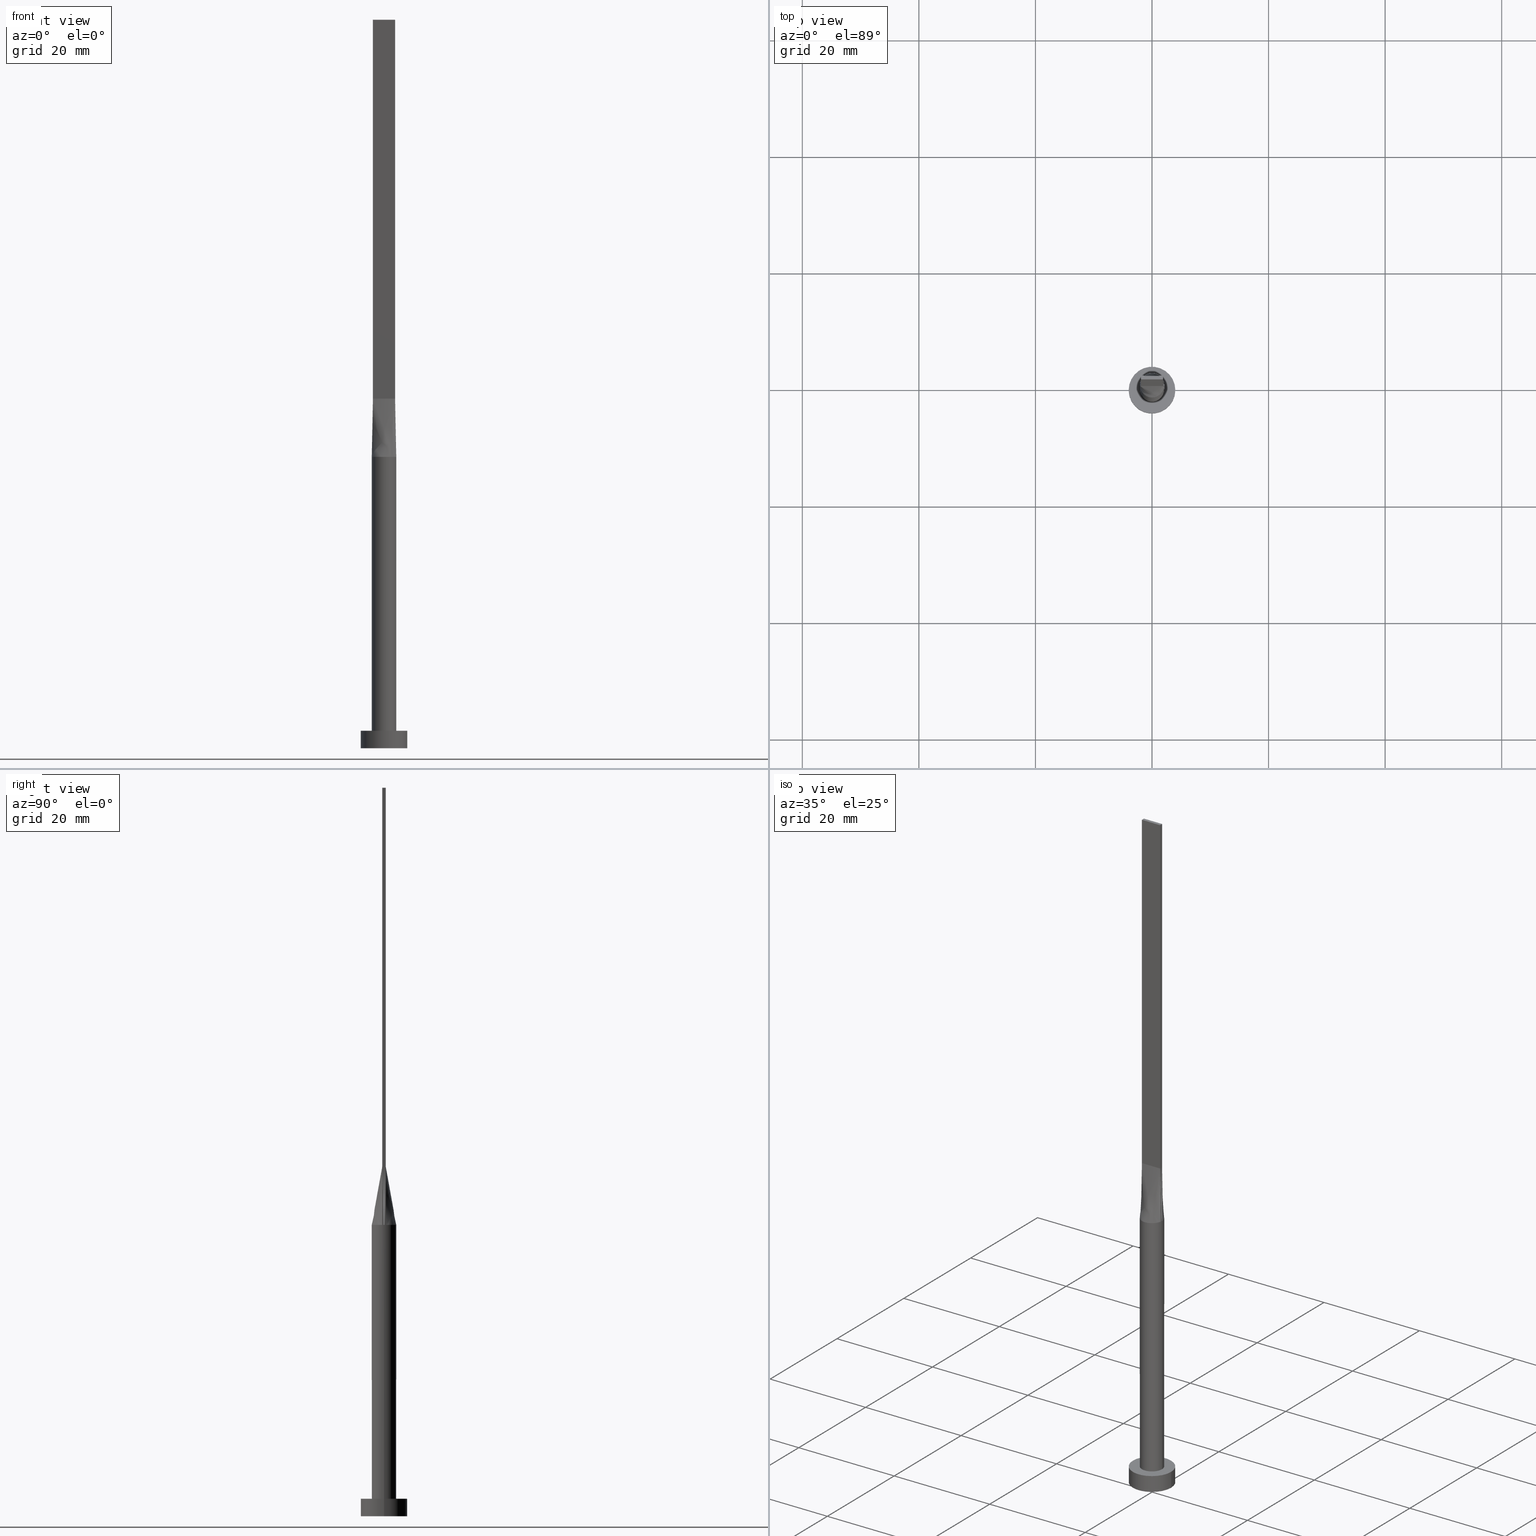
[diagram: canonical four-view strip — front | top / right | iso, engineering-drawing reading convention]
A machine part, canonical four-view strip (front | top / right | iso — engineering-drawing reading convention). The complete STEP part file that produces these views, byte-faithful:
ISO-10303-21;
HEADER;
FILE_DESCRIPTION (( 'STEP AP203' ),
    '1' );
FILE_NAME ('81cd.STEP',
    '2026-02-12T09:05:00',
    ( '' ),
    ( '' ),
    'SwSTEP 2.0',
    'SolidWorks 2019',
    '' );
FILE_SCHEMA (( 'CONFIG_CONTROL_DESIGN' ));
ENDSEC;

DATA;
#1 = CARTESIAN_POINT ( 'NONE',  ( 0.7916666666666664076, 0.3000000000000001554, 60.00000000000000000 ) ) ;
#2 = DIRECTION ( 'NONE',  ( 7.132909029509899409E-17, 1.000000000000000000, -0.000000000000000000 ) ) ;
#3 = FACE_OUTER_BOUND ( 'NONE', #59, .T. ) ;
#4 = CARTESIAN_POINT ( 'NONE',  ( 0.7916666666666672958, -0.2999999999999996003, 60.00000000000000000 ) ) ;
#5 = EDGE_CURVE ( 'NONE', #105, #156, #282, .T. ) ;
#6 = ORIENTED_EDGE ( 'NONE', *, *, #530, .F. ) ;
#7 = VECTOR ( 'NONE', #484, 1000.000000000000000 ) ;
#8 = ORIENTED_EDGE ( 'NONE', *, *, #332, .F. ) ;
#9 = CARTESIAN_POINT ( 'NONE',  ( -1.819451111325472548, -1.069832718648841663, 50.00000000000000711 ) ) ;
#10 = CARTESIAN_POINT ( 'NONE',  ( 1.819451111325471215, 1.069832718648841885, 49.99999999999999289 ) ) ;
#11 = DIRECTION ( 'NONE',  ( 0.000000000000000000, 0.000000000000000000, 1.000000000000000000 ) ) ;
#12 = ORIENTED_EDGE ( 'NONE', *, *, #425, .T. ) ;
#13 = EDGE_CURVE ( 'NONE', #186, #326, #440, .T. ) ;
#14 = ORIENTED_EDGE ( 'NONE', *, *, #386, .T. ) ;
#15 = CC_DESIGN_APPROVAL ( #241, ( #177 ) ) ;
#16 = APPROVAL_DATE_TIME ( #556, #302 ) ;
#17 = AXIS2_PLACEMENT_3D ( 'NONE', #230, #269, #309 ) ;
#18 = CARTESIAN_POINT ( 'NONE',  ( -0.5970064165420507774, 2.033566071616263127, 50.00000000000000000 ) ) ;
#19 = AXIS2_PLACEMENT_3D ( 'NONE', #340, #430, #68 ) ;
#20 = ORIENTED_EDGE ( 'NONE', *, *, #386, .F. ) ;
#21 = VERTEX_POINT ( 'NONE', #143 ) ;
#22 = DIRECTION ( 'NONE',  ( 3.614007241618350250E-16, 1.000000000000000000, 0.000000000000000000 ) ) ;
#23 = ORIENTED_EDGE ( 'NONE', *, *, #353, .T. ) ;
#24 = ADVANCED_FACE ( 'NONE', ( #508 ), #95, .F. ) ;
#25 = FACE_OUTER_BOUND ( 'NONE', #93, .T. ) ;
#26 = ORIENTED_EDGE ( 'NONE', *, *, #99, .T. ) ;
#27 = ORIENTED_EDGE ( 'NONE', *, *, #417, .T. ) ;
#28 = CARTESIAN_POINT ( 'NONE',  ( 0.2990728642939458615, 2.100000000000000089, 50.00000000000000711 ) ) ;
#29 = DIRECTION ( 'NONE',  ( -0.000000000000000000, -0.000000000000000000, -1.000000000000000000 ) ) ;
#30 = CARTESIAN_POINT ( 'NONE',  ( 0.000000000000000000, 0.000000000000000000, 125.0000000000000000 ) ) ;
#31 = CARTESIAN_POINT ( 'NONE',  ( -2.047342767731585411, -0.4982646475365654637, 50.00000000000000711 ) ) ;
#32 = DATE_AND_TIME ( #397, #163 ) ;
#33 = CARTESIAN_POINT ( 'NONE',  ( -1.899999999999999911, -0.2999999999999994893, 60.00000000000000711 ) ) ;
#34 = ORIENTED_EDGE ( 'NONE', *, *, #190, .F. ) ;
#35 = FACE_BOUND ( 'NONE', #327, .T. ) ;
#36 = EDGE_CURVE ( 'NONE', #278, #501, #187, .T. ) ;
#37 = LINE ( 'NONE', #580, #402 ) ;
#38 = CC_DESIGN_SECURITY_CLASSIFICATION ( #183, ( #177 ) ) ;
#39 = FACE_OUTER_BOUND ( 'NONE', #534, .T. ) ;
#40 = AXIS2_PLACEMENT_3D ( 'NONE', #350, #494, #173 ) ;
#41 = DATE_AND_TIME ( #452, #361 ) ;
#42 = FACE_OUTER_BOUND ( 'NONE', #272, .T. ) ;
#43 = CARTESIAN_POINT ( 'NONE',  ( 1.692271541701912296, 1.268928319070362187, 50.00000000000000711 ) ) ;
#44 = EDGE_CURVE ( 'NONE', #278, #546, #141, .T. ) ;
#45 = CARTESIAN_POINT ( 'NONE',  ( -0.2990728642939464721, -2.100000000000000977, 50.00000000000000711 ) ) ;
#46 = EDGE_LOOP ( 'NONE', ( #363, #20, #61, #314 ) ) ;
#47 = B_SPLINE_CURVE_WITH_KNOTS ( 'NONE', 3,
 ( #254, #540, #351, #573, #578, #167, #125, #575, #295, #218, #298, #72, #75, #445, #401, #355, #221, #404 ),
 .UNSPECIFIED., .F., .F.,
 ( 4, 2, 2, 2, 2, 2, 2, 2, 4 ),
 ( 0.000000000000000000, 0.1249999999999999722, 0.2500000000000000000, 0.3750000000000000000, 0.5000000000000000000, 0.6250000000000000000, 0.7500000000000000000, 0.8750000000000000000, 1.000000000000000000 ),
 .UNSPECIFIED. ) ;
#48 = CARTESIAN_POINT ( 'NONE',  ( -0.7916666666666655194, -0.2999999999999995448, 60.00000000000000000 ) ) ;
#49 = CARTESIAN_POINT ( 'NONE',  ( 0.000000000000000000, 0.000000000000000000, 0.000000000000000000 ) ) ;
#50 = VERTEX_POINT ( 'NONE', #505 ) ;
#51 = CARTESIAN_POINT ( 'NONE',  ( 1.899999999999999689, 0.3000000000000002109, 125.0000000000000000 ) ) ;
#52 = VECTOR ( 'NONE', #492, 1000.000000000000000 ) ;
#53 = CARTESIAN_POINT ( 'NONE',  ( 1.996565546919327527, 0.6845950695482651005, 50.00000000000001421 ) ) ;
#54 = APPROVAL_STATUS ( 'not_yet_approved' ) ;
#55 = ORIENTED_EDGE ( 'NONE', *, *, #368, .T. ) ;
#56 = ADVANCED_FACE ( 'NONE', ( #276 ), #543, .T. ) ;
#57 = CARTESIAN_POINT ( 'NONE',  ( 1.108333333333332948, 0.3000000000000001554, 59.99999999999999289 ) ) ;
#58 = CARTESIAN_POINT ( 'NONE',  ( 2.074302227191044956, 0.3275214042933228820, 50.00000000000000000 ) ) ;
#59 = EDGE_LOOP ( 'NONE', ( #310, #377, #103, #396, #574 ) ) ;
#60 = AXIS2_PLACEMENT_3D ( 'NONE', #463, #2, #515 ) ;
#61 = ORIENTED_EDGE ( 'NONE', *, *, #290, .F. ) ;
#62 = CC_DESIGN_PERSON_AND_ORGANIZATION_ASSIGNMENT ( #299, #357, ( #183 ) ) ;
#63 = DIRECTION ( 'NONE',  ( 0.000000000000000000, 0.000000000000000000, 1.000000000000000000 ) ) ;
#64 = CARTESIAN_POINT ( 'NONE',  ( -2.074302227191044956, -0.3275214042933223824, 50.00000000000000000 ) ) ;
#65 = VECTOR ( 'NONE', #324, 1000.000000000000000 ) ;
#66 = DIRECTION ( 'NONE',  ( -1.000000000000000000, 0.000000000000000000, 0.000000000000000000 ) ) ;
#67 = CARTESIAN_POINT ( 'NONE',  ( 0.1583333333333333259, 0.3000000000000001554, 60.00000000000000000 ) ) ;
#68 = DIRECTION ( 'NONE',  ( -1.000000000000000000, 0.000000000000000000, 0.000000000000000000 ) ) ;
#69 = CARTESIAN_POINT ( 'NONE',  ( 2.074302227191044956, -0.3275214042933231595, 50.00000000000000000 ) ) ;
#70 = CARTESIAN_POINT ( 'NONE',  ( -1.899999999999999689, 0.3000000000000002109, 60.00000000000000711 ) ) ;
#71 = CARTESIAN_POINT ( 'NONE',  ( -1.583333333333333037, -0.2999999999999994893, 60.00000000000000711 ) ) ;
#72 = CARTESIAN_POINT ( 'NONE',  ( -1.119115561862284558, 1.799829988698611327, 49.99999999999999289 ) ) ;
#73 = AXIS2_PLACEMENT_3D ( 'NONE', #348, #258, #120 ) ;
#74 = LINE ( 'NONE', #491, #373 ) ;
#75 = CARTESIAN_POINT ( 'NONE',  ( -1.342614810400549308, 1.634425746458370021, 50.00000000000002132 ) ) ;
#76 = EDGE_CURVE ( 'NONE', #156, #21, #507, .T. ) ;
#77 = LINE ( 'NONE', #260, #223 ) ;
#78 = CARTESIAN_POINT ( 'NONE',  ( 1.987151113595522212, -0.3137607021466614632, 55.00000000000000711 ) ) ;
#79 = DIRECTION ( 'NONE',  ( -0.01742750958084840485, -0.002751712039081279787, 0.9998443428807622935 ) ) ;
#80 = ORGANIZATION ( 'NEUR�EN�', 'NEUR�EN�', '' ) ;
#81 = CARTESIAN_POINT ( 'NONE',  ( 1.119115561862284558, 1.799829988698611105, 49.99999999999999289 ) ) ;
#82 = CARTESIAN_POINT ( 'NONE',  ( -0.1583333333333317716, -0.2999999999999996003, 60.00000000000000000 ) ) ;
#83 = ORIENTED_EDGE ( 'NONE', *, *, #312, .F. ) ;
#84 = CARTESIAN_POINT ( 'NONE',  ( 4.000000000000000000, 4.898587196589412829E-16, 3.000000000000000000 ) ) ;
#85 = CARTESIAN_POINT ( 'NONE',  ( -2.100000000000000089, 0.000000000000000000, 50.00000000000000000 ) ) ;
#86 = ORIENTED_EDGE ( 'NONE', *, *, #13, .F. ) ;
#87 = CARTESIAN_POINT ( 'NONE',  ( 1.119115561862284114, -1.799829988698610883, 49.99999999999997868 ) ) ;
#88 = ORIENTED_EDGE ( 'NONE', *, *, #228, .F. ) ;
#89 = DIRECTION ( 'NONE',  ( 1.000000000000000000, -3.614007241618350250E-16, 0.000000000000000000 ) ) ;
#90 = APPLICATION_PROTOCOL_DEFINITION ( 'international standard', 'config_control_design', 1994, #198 ) ;
#91 = AXIS2_PLACEMENT_3D ( 'NONE', #394, #532, #437 ) ;
#92 = VECTOR ( 'NONE', #379, 1000.000000000000000 ) ;
#93 = EDGE_LOOP ( 'NONE', ( #462, #158, #429, #367 ) ) ;
#94 =( LENGTH_UNIT ( ) NAMED_UNIT ( * ) SI_UNIT ( .MILLI., .METRE. ) );
#95 = PLANE ( 'NONE',  #17 ) ;
#96 = ORIENTED_EDGE ( 'NONE', *, *, #178, .T. ) ;
#97 = SHAPE_DEFINITION_REPRESENTATION ( #189, #516 ) ;
#98 = ORIENTED_EDGE ( 'NONE', *, *, #519, .F. ) ;
#99 = EDGE_CURVE ( 'NONE', #229, #546, #161, .T. ) ;
#100 = AXIS2_PLACEMENT_3D ( 'NONE', #477, #206, #384 ) ;
#101 = FACE_OUTER_BOUND ( 'NONE', #408, .T. ) ;
#102 = DIRECTION ( 'NONE',  ( 1.000000000000000000, 0.000000000000000000, 0.000000000000000000 ) ) ;
#103 = ORIENTED_EDGE ( 'NONE', *, *, #368, .F. ) ;
#104 = LINE ( 'NONE', #84, #370 ) ;
#105 = VERTEX_POINT ( 'NONE', #70 ) ;
#106 = CARTESIAN_POINT ( 'NONE',  ( 2.099842767731585624, -0.1098417832277428230, 50.00000000000000000 ) ) ;
#107 = DIRECTION ( 'NONE',  ( 1.000000000000000000, 0.000000000000000000, 0.000000000000000000 ) ) ;
#108 = CYLINDRICAL_SURFACE ( 'NONE', #504, 4.000000000000000000 ) ;
#109 = ADVANCED_FACE ( 'NONE', ( #249 ), #365, .T. ) ;
#110 = CARTESIAN_POINT ( 'NONE',  ( -0.6333333333333331927, 0.3000000000000001554, 60.00000000000000000 ) ) ;
#111 = CARTESIAN_POINT ( 'NONE',  ( 1.899999999999999689, -0.09999999999999995004, 60.00000000000000000 ) ) ;
#112 = CIRCLE ( 'NONE', #459, 4.000000000000000000 ) ;
#113 = APPROVAL_PERSON_ORGANIZATION ( #148, #281, #192 ) ;
#114 = CARTESIAN_POINT ( 'NONE',  ( 0.000000000000000000, 0.000000000000000000, 50.00000000000000000 ) ) ;
#115 = CARTESIAN_POINT ( 'NONE',  ( -2.074302227191044956, 0.3275214042933224934, 50.00000000000000000 ) ) ;
#116 = EDGE_LOOP ( 'NONE', ( #372, #237, #521, #6 ) ) ;
#117 = CARTESIAN_POINT ( 'NONE',  ( -0.2990728642939458615, 2.100000000000000089, 49.99999999999999289 ) ) ;
#118 = PERSON_AND_ORGANIZATION ( #382, #80 ) ;
#119 = CARTESIAN_POINT ( 'NONE',  ( 1.899999999999999467, 0.1000000000000000194, 60.00000000000000000 ) ) ;
#120 = DIRECTION ( 'NONE',  ( -1.084202172485504434E-15, -1.000000000000000000, 0.000000000000000000 ) ) ;
#121 = PRODUCT ( '81cd', '81cd', '', ( #466 ) ) ;
#122 = CARTESIAN_POINT ( 'NONE',  ( -2.091329254218072364, 0.2196835664554852019, 50.00000000000000000 ) ) ;
#123 = ORIENTED_EDGE ( 'NONE', *, *, #378, .F. ) ;
#124 = EDGE_CURVE ( 'NONE', #292, #21, #219, .T. ) ;
#125 = CARTESIAN_POINT ( 'NONE',  ( 1.119115561862284558, 1.799829988698611105, 49.99999999999999289 ) ) ;
#126 = VECTOR ( 'NONE', #558, 1000.000000000000000 ) ;
#127 = PERSON_AND_ORGANIZATION_ROLE ( 'design_supplier' ) ;
#128 = CARTESIAN_POINT ( 'NONE',  ( 1.899999999999999689, 0.3000000000000002109, 60.00000000000000711 ) ) ;
#129 = LINE ( 'NONE', #537, #52 ) ;
#130 = SECURITY_CLASSIFICATION_LEVEL ( 'unclassified' ) ;
#131 = CARTESIAN_POINT ( 'NONE',  ( 2.047342767731584967, 0.4982646475365660188, 50.00000000000002132 ) ) ;
#132 = DIRECTION ( 'NONE',  ( -0.000000000000000000, -0.000000000000000000, -1.000000000000000000 ) ) ;
#133 = ADVANCED_FACE ( 'NONE', ( #566 ), #490, .T. ) ;
#134 = CARTESIAN_POINT ( 'NONE',  ( -0.3166666666666652086, -0.2999999999999996003, 60.00000000000000000 ) ) ;
#135 = DIRECTION ( 'NONE',  ( 0.000000000000000000, 0.000000000000000000, 1.000000000000000000 ) ) ;
#136 = VERTEX_POINT ( 'NONE', #291 ) ;
#137 = VECTOR ( 'NONE', #435, 1000.000000000000114 ) ;
#138 = LINE ( 'NONE', #311, #211 ) ;
#139 = CARTESIAN_POINT ( 'NONE',  ( -1.899999999999999467, 0.2000000000000005107, 60.00000000000000000 ) ) ;
#140 = CARTESIAN_POINT ( 'NONE',  ( -1.342614810400548864, -1.634425746458369355, 50.00000000000001421 ) ) ;
#141 = LINE ( 'NONE', #85, #513 ) ;
#142 = ORIENTED_EDGE ( 'NONE', *, *, #318, .T. ) ;
#143 = CARTESIAN_POINT ( 'NONE',  ( 1.899999999999999023, -0.2999999999999997669, 60.00000000000000711 ) ) ;
#144 = CC_DESIGN_PERSON_AND_ORGANIZATION_ASSIGNMENT ( #538, #576, ( #177 ) ) ;
#145 = FACE_OUTER_BOUND ( 'NONE', #46, .T. ) ;
#146 = LOCAL_TIME ( 10, 5, 0.000000000000000000, #506 ) ;
#147 = CARTESIAN_POINT ( 'NONE',  ( -1.266666666666666385, 0.3000000000000002109, 60.00000000000000000 ) ) ;
#148 = PERSON_AND_ORGANIZATION ( #382, #80 ) ;
#149 = ORIENTED_EDGE ( 'NONE', *, *, #5, .T. ) ;
#150 = ORIENTED_EDGE ( 'NONE', *, *, #99, .F. ) ;
#151 = EDGE_CURVE ( 'NONE', #330, #105, #485, .T. ) ;
#152 = EDGE_LOOP ( 'NONE', ( #559, #499, #320, #416 ) ) ;
#153 = AXIS2_PLACEMENT_3D ( 'NONE', #328, #63, #102 ) ;
#154 = CARTESIAN_POINT ( 'NONE',  ( -1.899999999999999911, -0.2999999999999994893, 125.0000000000000000 ) ) ;
#155 = LINE ( 'NONE', #334, #495 ) ;
#156 = VERTEX_POINT ( 'NONE', #33 ) ;
#157 = EDGE_CURVE ( 'NONE', #292, #169, #478, .T. ) ;
#158 = ORIENTED_EDGE ( 'NONE', *, *, #265, .T. ) ;
#159 = CARTESIAN_POINT ( 'NONE',  ( 2.074471112824316510, 0.3275477247839024275, 50.00000000000000000 ) ) ;
#160 = DIRECTION ( 'NONE',  ( -0.000000000000000000, -0.000000000000000000, -1.000000000000000000 ) ) ;
#161 = CIRCLE ( 'NONE', #331, 2.100000000000000089 ) ;
#162 = LINE ( 'NONE', #200, #503 ) ;
#163 = LOCAL_TIME ( 10, 5, 0.000000000000000000, #166 ) ;
#164 = DIRECTION ( 'NONE',  ( -0.000000000000000000, -0.000000000000000000, -1.000000000000000000 ) ) ;
#165 = CARTESIAN_POINT ( 'NONE',  ( -1.692271541701912296, 1.268928319070362631, 50.00000000000001421 ) ) ;
#166 = COORDINATED_UNIVERSAL_TIME_OFFSET ( 1, 0, .AHEAD. ) ;
#167 = CARTESIAN_POINT ( 'NONE',  ( 1.342614810400549086, 1.634425746458369799, 50.00000000000001421 ) ) ;
#168 = CARTESIAN_POINT ( 'NONE',  ( -2.091329254218072364, -0.2196835664554846468, 50.00000000000000000 ) ) ;
#169 = VERTEX_POINT ( 'NONE', #443 ) ;
#170 = CC_DESIGN_DATE_AND_TIME_ASSIGNMENT ( #32, #346, ( #553 ) ) ;
#171 = APPROVAL_ROLE ( '' ) ;
#172 = PERSON_AND_ORGANIZATION ( #382, #80 ) ;
#173 = DIRECTION ( 'NONE',  ( 1.000000000000000000, 0.000000000000000000, 0.000000000000000000 ) ) ;
#174 = DATE_TIME_ROLE ( 'classification_date' ) ;
#175 = CARTESIAN_POINT ( 'NONE',  ( 4.000000000000000000, 4.898587196589412829E-16, 0.000000000000000000 ) ) ;
#176 = AXIS2_PLACEMENT_3D ( 'NONE', #319, #11, #191 ) ;
#177 = PRODUCT_DEFINITION_FORMATION_WITH_SPECIFIED_SOURCE ( 'LIBOVOLN�', '', #121, .NOT_KNOWN. ) ;
#178 = EDGE_CURVE ( 'NONE', #514, #105, #488, .T. ) ;
#179 = FACE_OUTER_BOUND ( 'NONE', #231, .T. ) ;
#180 = DIRECTION ( 'NONE',  ( 1.084202172485504434E-15, 1.000000000000000000, 0.000000000000000000 ) ) ;
#181 = CARTESIAN_POINT ( 'NONE',  ( -1.266666666666665941, -0.2999999999999994893, 60.00000000000000000 ) ) ;
#182 = CARTESIAN_POINT ( 'NONE',  ( -1.899999999999999689, 0.3000000000000002109, 125.0000000000000000 ) ) ;
#183 = SECURITY_CLASSIFICATION ( '', '', #130 ) ;
#184 = CARTESIAN_POINT ( 'NONE',  ( 1.692271541701912962, -1.268928319070363520, 50.00000000000004263 ) ) ;
#185 = DIRECTION ( 'NONE',  ( 1.000000000000000000, 0.000000000000000000, 0.000000000000000000 ) ) ;
#186 = VERTEX_POINT ( 'NONE', #175 ) ;
#187 = CIRCLE ( 'NONE', #176, 2.100000000000000089 ) ;
#188 = CARTESIAN_POINT ( 'NONE',  ( 0.6333333333333341919, -0.2999999999999996003, 60.00000000000000000 ) ) ;
#189 = PRODUCT_DEFINITION_SHAPE ( 'NONE', 'NONE',  #553 ) ;
#190 = EDGE_CURVE ( 'NONE', #169, #549, #431, .T. ) ;
#191 = DIRECTION ( 'NONE',  ( 1.000000000000000000, 0.000000000000000000, 0.000000000000000000 ) ) ;
#192 = APPROVAL_ROLE ( '' ) ;
#193 = APPLICATION_PROTOCOL_DEFINITION ( 'international standard', 'config_control_design', 1994, #518 ) ;
#194 = ORIENTED_EDGE ( 'NONE', *, *, #312, .T. ) ;
#195 = VECTOR ( 'NONE', #164, 1000.000000000000000 ) ;
#196 = AXIS2_PLACEMENT_3D ( 'NONE', #30, #448, #455 ) ;
#197 = CARTESIAN_POINT ( 'NONE',  ( -1.583333333333333037, 0.3000000000000002109, 60.00000000000000000 ) ) ;
#198 = APPLICATION_CONTEXT ( 'configuration controlled 3d designs of mechanical parts and assemblies' ) ;
#199 = ADVANCED_FACE ( 'NONE', ( #35, #42 ), #251, .T. ) ;
#200 = CARTESIAN_POINT ( 'NONE',  ( -1.987151113595522656, -0.3137607021466609636, 55.00000000000000711 ) ) ;
#201 = ORIENTED_EDGE ( 'NONE', *, *, #44, .F. ) ;
#202 = LINE ( 'NONE', #236, #195 ) ;
#203 = ORIENTED_EDGE ( 'NONE', *, *, #157, .F. ) ;
#204 = CARTESIAN_POINT ( 'NONE',  ( 1.899999999999999689, 0.3000000000000002109, 125.0000000000000000 ) ) ;
#205 = PLANE ( 'NONE',  #196 ) ;
#206 = DIRECTION ( 'NONE',  ( 0.000000000000000000, 0.000000000000000000, 1.000000000000000000 ) ) ;
#207 = CARTESIAN_POINT ( 'NONE',  ( 1.741666666666665586, -0.2999999999999997113, 60.00000000000000000 ) ) ;
#208 = CARTESIAN_POINT ( 'NONE',  ( -1.108333333333333171, 0.3000000000000002109, 60.00000000000000000 ) ) ;
#209 = APPROVAL_STATUS ( 'not_yet_approved' ) ;
#210 = CARTESIAN_POINT ( 'NONE',  ( 2.074302227191044956, 0.3275214042933226599, 50.00000000000000000 ) ) ;
#211 = VECTOR ( 'NONE', #364, 1000.000000000000000 ) ;
#212 = CARTESIAN_POINT ( 'NONE',  ( 0.000000000000000000, 0.000000000000000000, 50.00000000000000000 ) ) ;
#213 = ADVANCED_FACE ( 'NONE', ( #179 ), #216, .F. ) ;
#214 = CARTESIAN_POINT ( 'NONE',  ( 0.000000000000000000, 0.000000000000000000, 50.00000000000000000 ) ) ;
#215 = ORIENTED_EDGE ( 'NONE', *, *, #190, .T. ) ;
#216 = PLANE ( 'NONE',  #73 ) ;
#217 = DATE_AND_TIME ( #356, #329 ) ;
#218 = CARTESIAN_POINT ( 'NONE',  ( -0.2990728642939458615, 2.100000000000000089, 49.99999999999999289 ) ) ;
#219 = LINE ( 'NONE', #78, #137 ) ;
#220 = EDGE_CURVE ( 'NONE', #549, #330, #47, .T. ) ;
#221 = CARTESIAN_POINT ( 'NONE',  ( -2.047342767731585855, 0.4982646475365663519, 50.00000000000000711 ) ) ;
#222 = VECTOR ( 'NONE', #438, 1000.000000000000114 ) ;
#223 = VECTOR ( 'NONE', #79, 1000.000000000000114 ) ;
#224 = CARTESIAN_POINT ( 'NONE',  ( 2.074302227191044956, -0.3275214042933231595, 50.00000000000000000 ) ) ;
#225 = LINE ( 'NONE', #409, #92 ) ;
#226 = CARTESIAN_POINT ( 'NONE',  ( 0.2990728642939452508, -2.100000000000000533, 50.00000000000001421 ) ) ;
#227 = CARTESIAN_POINT ( 'NONE',  ( 0.5970064165420505553, -2.033566071616262683, 50.00000000000000711 ) ) ;
#228 = EDGE_CURVE ( 'NONE', #136, #326, #129, .T. ) ;
#229 = VERTEX_POINT ( 'NONE', #447 ) ;
#230 = CARTESIAN_POINT ( 'NONE',  ( 0.000000000000000000, 0.000000000000000000, 0.000000000000000000 ) ) ;
#231 = EDGE_LOOP ( 'NONE', ( #12, #563, #98, #14 ) ) ;
#232 = CARTESIAN_POINT ( 'NONE',  ( -2.099921383865792635, -5.254633567926592411E-16, 50.00000000000000000 ) ) ;
#233 = DIRECTION ( 'NONE',  ( 0.000000000000000000, 0.000000000000000000, 1.000000000000000000 ) ) ;
#234 = EDGE_CURVE ( 'NONE', #528, #105, #37, .T. ) ;
#235 = ORIENTED_EDGE ( 'NONE', *, *, #13, .T. ) ;
#236 = CARTESIAN_POINT ( 'NONE',  ( 1.899999999999999023, -0.2999999999999997669, 125.0000000000000000 ) ) ;
#237 = ORIENTED_EDGE ( 'NONE', *, *, #151, .T. ) ;
#238 = ORIENTED_EDGE ( 'NONE', *, *, #417, .F. ) ;
#239 = DIRECTION ( 'NONE',  ( 1.000000000000000000, 0.000000000000000000, 0.000000000000000000 ) ) ;
#240 = FACE_OUTER_BOUND ( 'NONE', #375, .T. ) ;
#241 = APPROVAL ( #209, 'NEUR�EN�' ) ;
#242 = AXIS2_PLACEMENT_3D ( 'NONE', #114, #288, #482 ) ;
#243 = VECTOR ( 'NONE', #29, 1000.000000000000000 ) ;
#244 = CARTESIAN_POINT ( 'NONE',  ( 1.899999999999999467, 0.2000000000000000666, 60.00000000000000000 ) ) ;
#245 = CYLINDRICAL_SURFACE ( 'NONE', #19, 4.000000000000000000 ) ;
#246 = EDGE_LOOP ( 'NONE', ( #149, #542, #360, #96 ) ) ;
#247 = CARTESIAN_POINT ( 'NONE',  ( 0.000000000000000000, 0.000000000000000000, 3.000000000000000000 ) ) ;
#248 = ORIENTED_EDGE ( 'NONE', *, *, #332, .T. ) ;
#249 = FACE_OUTER_BOUND ( 'NONE', #433, .T. ) ;
#250 = ADVANCED_FACE ( 'NONE', ( #101 ), #471, .T. ) ;
#251 = PLANE ( 'NONE',  #91 ) ;
#252 = B_SPLINE_SURFACE_WITH_KNOTS ( 'NONE', 3, 1, ( 
 ( #300, #307 ),
 ( #122, #139 ),
 ( #303, #296 ),
 ( #444, #358 ),
 ( #168, #539 ),
 ( #577, #489 ) ),
 .UNSPECIFIED., .F., .F., .F.,
 ( 4, 2, 4 ),
 ( 2, 2 ),
 ( 0.000000000000000000, 0.5000000000000000000, 1.000000000000000000 ),
 ( 0.000000000000000000, 1.000000000000000000 ),
 .UNSPECIFIED. ) ;
#253 = FACE_OUTER_BOUND ( 'NONE', #152, .T. ) ;
#254 = CARTESIAN_POINT ( 'NONE',  ( 2.074471112824316510, 0.3275477247839024275, 50.00000000000000000 ) ) ;
#255 = CARTESIAN_POINT ( 'NONE',  ( -1.987151113595522212, 0.3137607021466613522, 55.00000000000000711 ) ) ;
#256 = CARTESIAN_POINT ( 'NONE',  ( -1.899999999999999911, -0.2999999999999994893, 125.0000000000000000 ) ) ;
#257 = B_SPLINE_SURFACE_WITH_KNOTS ( 'NONE', 3, 1, ( 
 ( #224, #406 ),
 ( #581, #572 ),
 ( #106, #111 ),
 ( #339, #119 ),
 ( #393, #244 ),
 ( #210, #385 ) ),
 .UNSPECIFIED., .F., .F., .F.,
 ( 4, 2, 4 ),
 ( 2, 2 ),
 ( 0.000000000000000000, 0.5000000000000000000, 1.000000000000000000 ),
 ( 0.000000000000000000, 1.000000000000000000 ),
 .UNSPECIFIED. ) ;
#258 = DIRECTION ( 'NONE',  ( -1.000000000000000000, 1.084202172485504434E-15, 0.000000000000000000 ) ) ;
#259 = ADVANCED_FACE ( 'NONE', ( #145 ), #426, .F. ) ;
#260 = CARTESIAN_POINT ( 'NONE',  ( 1.987151113595522212, 0.3137607021466614077, 55.00000000000000711 ) ) ;
#261 = APPROVAL_STATUS ( 'not_yet_approved' ) ;
#262 = DIRECTION ( 'NONE',  ( 0.000000000000000000, 0.000000000000000000, 1.000000000000000000 ) ) ;
#263 = COORDINATED_UNIVERSAL_TIME_OFFSET ( 1, 0, .AHEAD. ) ;
#264 = CARTESIAN_POINT ( 'NONE',  ( 1.899999999999999689, 0.3000000000000002109, 60.00000000000000711 ) ) ;
#265 = EDGE_CURVE ( 'NONE', #514, #525, #225, .T. ) ;
#266 = VERTEX_POINT ( 'NONE', #51 ) ;
#267 = CARTESIAN_POINT ( 'NONE',  ( 1.583333333333332815, 0.3000000000000002109, 60.00000000000000000 ) ) ;
#268 = CARTESIAN_POINT ( 'NONE',  ( 1.108333333333333393, -0.2999999999999996558, 60.00000000000000000 ) ) ;
#269 = DIRECTION ( 'NONE',  ( 0.000000000000000000, 0.000000000000000000, 1.000000000000000000 ) ) ;
#270 = PERSON_AND_ORGANIZATION ( #382, #80 ) ;
#271 = CARTESIAN_POINT ( 'NONE',  ( 1.741666666666666252, 0.3000000000000002109, 60.00000000000000000 ) ) ;
#272 = EDGE_LOOP ( 'NONE', ( #248, #23 ) ) ;
#273 =( NAMED_UNIT ( * ) PLANE_ANGLE_UNIT ( ) SI_UNIT ( $, .RADIAN. ) );
#274 = ADVANCED_FACE ( 'NONE', ( #322 ), #333, .F. ) ;
#275 = CARTESIAN_POINT ( 'NONE',  ( -1.899999999999999911, -0.2999999999999994893, 60.00000000000000711 ) ) ;
#276 = FACE_OUTER_BOUND ( 'NONE', #116, .T. ) ;
#277 = PERSON_AND_ORGANIZATION ( #382, #80 ) ;
#278 = VERTEX_POINT ( 'NONE', #232 ) ;
#279 = ORIENTED_EDGE ( 'NONE', *, *, #425, .F. ) ;
#280 = DESIGN_CONTEXT ( 'detailed design', #518, 'design' ) ;
#281 = APPROVAL ( #54, 'NEUR�EN�' ) ;
#282 = LINE ( 'NONE', #418, #65 ) ;
#283 = CARTESIAN_POINT ( 'NONE',  ( -1.819451111325472326, 1.069832718648841885, 50.00000000000000711 ) ) ;
#284 = CARTESIAN_POINT ( 'NONE',  ( -2.100000000000000089, 0.000000000000000000, 3.000000000000000000 ) ) ;
#285 = CARTESIAN_POINT ( 'NONE',  ( -1.342614810400549308, 1.634425746458370021, 50.00000000000002132 ) ) ;
#286 = AXIS2_PLACEMENT_3D ( 'NONE', #474, #561, #239 ) ;
#287 = PLANE ( 'NONE',  #579 ) ;
#288 = DIRECTION ( 'NONE',  ( -0.000000000000000000, -0.000000000000000000, -1.000000000000000000 ) ) ;
#289 = EDGE_LOOP ( 'NONE', ( #468, #86 ) ) ;
#290 = EDGE_CURVE ( 'NONE', #525, #50, #498, .T. ) ;
#291 = CARTESIAN_POINT ( 'NONE',  ( -4.000000000000000000, 0.000000000000000000, 3.000000000000000000 ) ) ;
#292 = VERTEX_POINT ( 'NONE', #316 ) ;
#293 = CARTESIAN_POINT ( 'NONE',  ( -1.996565546919327971, -0.6845950695482642123, 50.00000000000000000 ) ) ;
#294 = DIRECTION ( 'NONE',  ( 0.000000000000000000, 0.000000000000000000, 1.000000000000000000 ) ) ;
#295 = CARTESIAN_POINT ( 'NONE',  ( 0.2990728642939458615, 2.100000000000000089, 50.00000000000000711 ) ) ;
#296 = CARTESIAN_POINT ( 'NONE',  ( -1.899999999999999467, 0.1000000000000007550, 60.00000000000000000 ) ) ;
#297 = VECTOR ( 'NONE', #132, 1000.000000000000000 ) ;
#298 = CARTESIAN_POINT ( 'NONE',  ( -0.5970064165420507774, 2.033566071616263127, 50.00000000000000000 ) ) ;
#299 = PERSON_AND_ORGANIZATION ( #382, #80 ) ;
#300 = CARTESIAN_POINT ( 'NONE',  ( -2.074302227191044956, 0.3275214042933229375, 50.00000000000000000 ) ) ;
#301 = PERSON_AND_ORGANIZATION ( #382, #80 ) ;
#302 = APPROVAL ( #261, 'NEUR�EN�' ) ;
#303 = CARTESIAN_POINT ( 'NONE',  ( -2.099842767731585624, 0.1098417832277427397, 50.00000000000000000 ) ) ;
#304 = CARTESIAN_POINT ( 'NONE',  ( 1.342614810400549086, 1.634425746458369799, 50.00000000000001421 ) ) ;
#305 = DIRECTION ( 'NONE',  ( -1.000000000000000000, -0.000000000000000000, -0.000000000000000000 ) ) ;
#306 = CARTESIAN_POINT ( 'NONE',  ( -0.6333333333333320825, -0.2999999999999996003, 60.00000000000000000 ) ) ;
#307 = CARTESIAN_POINT ( 'NONE',  ( -1.899999999999999689, 0.3000000000000002109, 60.00000000000000711 ) ) ;
#308 = CLOSED_SHELL ( 'NONE', ( #133, #461, #469, #199, #24, #250, #109, #536, #493, #56, #560, #274, #259, #213, #487 ) ) ;
#309 = DIRECTION ( 'NONE',  ( 1.000000000000000000, 0.000000000000000000, -0.000000000000000000 ) ) ;
#310 = ORIENTED_EDGE ( 'NONE', *, *, #378, .T. ) ;
#311 = CARTESIAN_POINT ( 'NONE',  ( 2.100000000000000089, 2.571758278209441957E-16, 50.00000000000000000 ) ) ;
#312 = EDGE_CURVE ( 'NONE', #380, #186, #104, .T. ) ;
#313 = CARTESIAN_POINT ( 'NONE',  ( 1.996565546919328415, -0.6845950695482654336, 50.00000000000001421 ) ) ;
#314 = ORIENTED_EDGE ( 'NONE', *, *, #434, .T. ) ;
#315 = CARTESIAN_POINT ( 'NONE',  ( -1.692271541701912296, -1.268928319070361965, 50.00000000000000000 ) ) ;
#316 = CARTESIAN_POINT ( 'NONE',  ( 2.074492141291045755, -0.3275508996892426139, 50.00000000000000000 ) ) ;
#317 = LOCAL_TIME ( 10, 5, 0.000000000000000000, #424 ) ;
#318 = EDGE_CURVE ( 'NONE', #169, #229, #138, .T. ) ;
#319 = CARTESIAN_POINT ( 'NONE',  ( 0.000000000000000000, 0.000000000000000000, 50.00000000000000000 ) ) ;
#320 = ORIENTED_EDGE ( 'NONE', *, *, #407, .F. ) ;
#321 = AXIS2_PLACEMENT_3D ( 'NONE', #347, #294, #486 ) ;
#322 = FACE_OUTER_BOUND ( 'NONE', #246, .T. ) ;
#323 = CARTESIAN_POINT ( 'NONE',  ( 0.3166666666666665964, 0.3000000000000001554, 60.00000000000000000 ) ) ;
#324 = DIRECTION ( 'NONE',  ( -3.614007241618350250E-16, -1.000000000000000000, 0.000000000000000000 ) ) ;
#325 = APPROVAL_DATE_TIME ( #554, #281 ) ;
#326 = VERTEX_POINT ( 'NONE', #564 ) ;
#327 = EDGE_LOOP ( 'NONE', ( #411, #150 ) ) ;
#328 = CARTESIAN_POINT ( 'NONE',  ( 0.000000000000000000, 0.000000000000000000, 50.00000000000000000 ) ) ;
#329 = LOCAL_TIME ( 10, 5, 0.000000000000000000, #392 ) ;
#330 = VERTEX_POINT ( 'NONE', #398 ) ;
#331 = AXIS2_PLACEMENT_3D ( 'NONE', #467, #374, #345 ) ;
#332 = EDGE_CURVE ( 'NONE', #136, #380, #432, .T. ) ;
#333 = PLANE ( 'NONE',  #551 ) ;
#334 = CARTESIAN_POINT ( 'NONE',  ( -1.899999999999999911, -0.2999999999999994893, 125.0000000000000000 ) ) ;
#335 = ORIENTED_EDGE ( 'NONE', *, *, #157, .T. ) ;
#336 = LINE ( 'NONE', #204, #243 ) ;
#337 = LINE ( 'NONE', #389, #421 ) ;
#338 = CARTESIAN_POINT ( 'NONE',  ( -1.119115561862284558, 1.799829988698611327, 49.99999999999999289 ) ) ;
#339 = CARTESIAN_POINT ( 'NONE',  ( 2.099842767731585624, 0.1098417832277423373, 50.00000000000000000 ) ) ;
#340 = CARTESIAN_POINT ( 'NONE',  ( 0.000000000000000000, 0.000000000000000000, 3.000000000000000000 ) ) ;
#341 = CC_DESIGN_PERSON_AND_ORGANIZATION_ASSIGNMENT ( #172, #127, ( #177 ) ) ;
#342 = CARTESIAN_POINT ( 'NONE',  ( -1.996565546919327527, 0.6845950695482648785, 50.00000000000000711 ) ) ;
#343 = AXIS2_PLACEMENT_3D ( 'NONE', #212, #262, #441 ) ;
#344 = DIRECTION ( 'NONE',  ( 0.000000000000000000, -0.000000000000000000, -1.000000000000000000 ) ) ;
#345 = DIRECTION ( 'NONE',  ( 1.000000000000000000, 0.000000000000000000, 0.000000000000000000 ) ) ;
#346 = DATE_TIME_ROLE ( 'creation_date' ) ;
#347 = CARTESIAN_POINT ( 'NONE',  ( 0.000000000000000000, 0.000000000000000000, 3.000000000000000000 ) ) ;
#348 = CARTESIAN_POINT ( 'NONE',  ( 1.899999999999999023, -0.2999999999999997669, 125.0000000000000000 ) ) ;
#349 = DIRECTION ( 'NONE',  ( 1.000000000000000000, -7.993605777301127091E-15, 0.000000000000000000 ) ) ;
#350 = CARTESIAN_POINT ( 'NONE',  ( 0.000000000000000000, 0.000000000000000000, 0.000000000000000000 ) ) ;
#351 = CARTESIAN_POINT ( 'NONE',  ( 1.996565546919327527, 0.6845950695482651005, 50.00000000000001421 ) ) ;
#352 = CARTESIAN_POINT ( 'NONE',  ( -1.899999999999999689, 0.3000000000000002109, 125.0000000000000000 ) ) ;
#353 = EDGE_CURVE ( 'NONE', #380, #136, #112, .T. ) ;
#354 = AXIS2_PLACEMENT_3D ( 'NONE', #214, #395, #349 ) ;
#355 = CARTESIAN_POINT ( 'NONE',  ( -1.996565546919327527, 0.6845950695482648785, 50.00000000000000711 ) ) ;
#356 = CALENDAR_DATE ( 2026, 12, 2 ) ;
#357 = PERSON_AND_ORGANIZATION_ROLE ( 'classification_officer' ) ;
#358 = CARTESIAN_POINT ( 'NONE',  ( -1.899999999999999689, -0.09999999999999911737, 60.00000000000000000 ) ) ;
#359 = CARTESIAN_POINT ( 'NONE',  ( -0.5970064165420509994, -2.033566071616262239, 49.99999999999999289 ) ) ;
#360 = ORIENTED_EDGE ( 'NONE', *, *, #265, .F. ) ;
#361 = LOCAL_TIME ( 10, 5, 0.000000000000000000, #263 ) ;
#362 = VECTOR ( 'NONE', #565, 1000.000000000000000 ) ;
#363 = ORIENTED_EDGE ( 'NONE', *, *, #76, .T. ) ;
#364 = DIRECTION ( 'NONE',  ( -0.000000000000000000, -0.000000000000000000, -1.000000000000000000 ) ) ;
#365 = B_SPLINE_SURFACE_WITH_KNOTS ( 'NONE', 3, 1, ( 
 ( #64, #436 ),
 ( #31, #570 ),
 ( #293, #71 ),
 ( #9, #181 ),
 ( #315, #456 ),
 ( #140, #48 ),
 ( #454, #306 ),
 ( #359, #134 ),
 ( #45, #82 ),
 ( #226, #405 ),
 ( #227, #410 ),
 ( #87, #188 ),
 ( #548, #4 ),
 ( #184, #268 ),
 ( #545, #541 ),
 ( #313, #414 ),
 ( #366, #207 ),
 ( #69, #527 ) ),
 .UNSPECIFIED., .F., .F., .F.,
 ( 4, 2, 2, 2, 2, 2, 2, 2, 4 ),
 ( 2, 2 ),
 ( 0.000000000000000000, 0.1249999999999999445, 0.2499999999999999445, 0.3749999999999999445, 0.5000000000000000000, 0.6249999999999998890, 0.7499999999999998890, 0.8749999999999997780, 1.000000000000000000 ),
 ( 0.000000000000000000, 1.000000000000000000 ),
 .UNSPECIFIED. ) ;
#366 = CARTESIAN_POINT ( 'NONE',  ( 2.047342767731585855, -0.4982646475365661298, 50.00000000000000711 ) ) ;
#367 = ORIENTED_EDGE ( 'NONE', *, *, #519, .T. ) ;
#368 = EDGE_CURVE ( 'NONE', #156, #501, #162, .T. ) ;
#369 =( NAMED_UNIT ( * ) SI_UNIT ( $, .STERADIAN. ) SOLID_ANGLE_UNIT ( ) );
#370 = VECTOR ( 'NONE', #544, 1000.000000000000000 ) ;
#371 = CALENDAR_DATE ( 2026, 12, 2 ) ;
#372 = ORIENTED_EDGE ( 'NONE', *, *, #220, .T. ) ;
#373 = VECTOR ( 'NONE', #180, 1000.000000000000000 ) ;
#374 = DIRECTION ( 'NONE',  ( 0.000000000000000000, 0.000000000000000000, 1.000000000000000000 ) ) ;
#375 = EDGE_LOOP ( 'NONE', ( #83, #8, #428, #509 ) ) ;
#376 = LINE ( 'NONE', #427, #362 ) ;
#377 = ORIENTED_EDGE ( 'NONE', *, *, #36, .T. ) ;
#378 = EDGE_CURVE ( 'NONE', #330, #278, #451, .T. ) ;
#379 = DIRECTION ( 'NONE',  ( -3.614007241618350250E-16, -1.000000000000000000, 0.000000000000000000 ) ) ;
#380 = VERTEX_POINT ( 'NONE', #562 ) ;
#381 = AXIS2_PLACEMENT_3D ( 'NONE', #412, #550, #458 ) ;
#382 = PERSON ( 'NEUR�EN�', 'NEUR�EN�', 'NEUR�EN�', ('NEUR�EN�'), ('NEUR�EN�'), ('NEUR�EN�') ) ;
#383 = DIRECTION ( 'NONE',  ( 0.000000000000000000, 0.000000000000000000, 1.000000000000000000 ) ) ;
#384 = DIRECTION ( 'NONE',  ( 1.000000000000000000, 0.000000000000000000, 0.000000000000000000 ) ) ;
#385 = CARTESIAN_POINT ( 'NONE',  ( 1.899999999999999689, 0.3000000000000002109, 60.00000000000000711 ) ) ;
#386 = EDGE_CURVE ( 'NONE', #50, #21, #202, .T. ) ;
#387 = CARTESIAN_POINT ( 'NONE',  ( 0.5970064165420508884, 2.033566071616262683, 50.00000000000000711 ) ) ;
#388 = CARTESIAN_POINT ( 'NONE',  ( 1.899999999999999689, 0.3000000000000002109, 125.0000000000000000 ) ) ;
#389 = CARTESIAN_POINT ( 'NONE',  ( 1.899999999999999689, 0.3000000000000002109, 60.00000000000000711 ) ) ;
#390 = CARTESIAN_POINT ( 'NONE',  ( -1.741666666666666474, 0.3000000000000002109, 60.00000000000000000 ) ) ;
#391 = AXIS2_PLACEMENT_3D ( 'NONE', #49, #135, #185 ) ;
#392 = COORDINATED_UNIVERSAL_TIME_OFFSET ( 1, 0, .AHEAD. ) ;
#393 = CARTESIAN_POINT ( 'NONE',  ( 2.091329254218072364, 0.2196835664554849243, 50.00000000000000000 ) ) ;
#394 = CARTESIAN_POINT ( 'NONE',  ( 0.000000000000000000, 0.000000000000000000, 3.000000000000000000 ) ) ;
#395 = DIRECTION ( 'NONE',  ( 0.000000000000000000, 0.000000000000000000, 1.000000000000000000 ) ) ;
#396 = ORIENTED_EDGE ( 'NONE', *, *, #5, .F. ) ;
#397 = CALENDAR_DATE ( 2026, 12, 2 ) ;
#398 = CARTESIAN_POINT ( 'NONE',  ( -2.074476228699557279, 0.3275484103472254827, 50.00000000000000000 ) ) ;
#399 = CARTESIAN_POINT ( 'NONE',  ( -1.899999999999999689, 0.3000000000000002109, 125.0000000000000000 ) ) ;
#400 = CC_DESIGN_PERSON_AND_ORGANIZATION_ASSIGNMENT ( #270, #460, ( #121 ) ) ;
#401 = CARTESIAN_POINT ( 'NONE',  ( -1.819451111325472326, 1.069832718648841885, 50.00000000000000711 ) ) ;
#402 = VECTOR ( 'NONE', #305, 1000.000000000000000 ) ;
#403 =( GEOMETRIC_REPRESENTATION_CONTEXT ( 3 ) GLOBAL_UNCERTAINTY_ASSIGNED_CONTEXT ( ( #531 ) ) GLOBAL_UNIT_ASSIGNED_CONTEXT ( ( #94, #273, #369 ) ) REPRESENTATION_CONTEXT ( 'NONE', 'WORKASPACE' ) );
#404 = CARTESIAN_POINT ( 'NONE',  ( -2.074476228699557279, 0.3275484103472254827, 50.00000000000000000 ) ) ;
#405 = CARTESIAN_POINT ( 'NONE',  ( 0.1583333333333347970, -0.2999999999999996003, 60.00000000000000000 ) ) ;
#406 = CARTESIAN_POINT ( 'NONE',  ( 1.899999999999999911, -0.2999999999999997669, 60.00000000000000711 ) ) ;
#407 = EDGE_CURVE ( 'NONE', #266, #514, #376, .T. ) ;
#408 = EDGE_LOOP ( 'NONE', ( #465, #203, #238, #470, #415, #422 ) ) ;
#409 = CARTESIAN_POINT ( 'NONE',  ( -1.899999999999999689, 0.3000000000000002109, 125.0000000000000000 ) ) ;
#410 = CARTESIAN_POINT ( 'NONE',  ( 0.3166666666666678731, -0.2999999999999996003, 60.00000000000000000 ) ) ;
#411 = ORIENTED_EDGE ( 'NONE', *, *, #569, .F. ) ;
#412 = CARTESIAN_POINT ( 'NONE',  ( 0.000000000000000000, 0.000000000000000000, 50.00000000000000000 ) ) ;
#413 = APPROVAL_PERSON_ORGANIZATION ( #118, #241, #171 ) ;
#414 = CARTESIAN_POINT ( 'NONE',  ( 1.583333333333332371, -0.2999999999999997113, 60.00000000000000000 ) ) ;
#415 = ORIENTED_EDGE ( 'NONE', *, *, #44, .T. ) ;
#416 = ORIENTED_EDGE ( 'NONE', *, *, #547, .T. ) ;
#417 = EDGE_CURVE ( 'NONE', #501, #292, #523, .T. ) ;
#418 = CARTESIAN_POINT ( 'NONE',  ( -1.899999999999999689, 0.3000000000000002109, 60.00000000000000711 ) ) ;
#419 = CALENDAR_DATE ( 2026, 12, 2 ) ;
#420 = DIRECTION ( 'NONE',  ( -0.000000000000000000, -0.000000000000000000, -1.000000000000000000 ) ) ;
#421 = VECTOR ( 'NONE', #568, 1000.000000000000000 ) ;
#422 = ORIENTED_EDGE ( 'NONE', *, *, #569, .T. ) ;
#423 = DIRECTION ( 'NONE',  ( 1.000000000000000000, 0.000000000000000000, 0.000000000000000000 ) ) ;
#424 = COORDINATED_UNIVERSAL_TIME_OFFSET ( 1, 0, .AHEAD. ) ;
#425 = EDGE_CURVE ( 'NONE', #21, #528, #337, .T. ) ;
#426 = PLANE ( 'NONE',  #60 ) ;
#427 = CARTESIAN_POINT ( 'NONE',  ( 1.899999999999999689, 0.3000000000000002109, 125.0000000000000000 ) ) ;
#428 = ORIENTED_EDGE ( 'NONE', *, *, #228, .T. ) ;
#429 = ORIENTED_EDGE ( 'NONE', *, *, #290, .T. ) ;
#430 = DIRECTION ( 'NONE',  ( -0.000000000000000000, -0.000000000000000000, -1.000000000000000000 ) ) ;
#431 = CIRCLE ( 'NONE', #343, 2.100000000000000089 ) ;
#432 = CIRCLE ( 'NONE', #286, 4.000000000000000000 ) ;
#433 = EDGE_LOOP ( 'NONE', ( #27, #483, #439, #55 ) ) ;
#434 = EDGE_CURVE ( 'NONE', #525, #156, #155, .T. ) ;
#435 = DIRECTION ( 'NONE',  ( -0.01742750958084847077, 0.002751712039081371727, 0.9998443428807622935 ) ) ;
#436 = CARTESIAN_POINT ( 'NONE',  ( -1.899999999999999911, -0.2999999999999994893, 60.00000000000000711 ) ) ;
#437 = DIRECTION ( 'NONE',  ( 1.000000000000000000, 0.000000000000000000, -0.000000000000000000 ) ) ;
#438 = DIRECTION ( 'NONE',  ( 0.01742750958084840485, -0.002751712039081263307, 0.9998443428807622935 ) ) ;
#439 = ORIENTED_EDGE ( 'NONE', *, *, #76, .F. ) ;
#440 = CIRCLE ( 'NONE', #391, 4.000000000000000000 ) ;
#441 = DIRECTION ( 'NONE',  ( 1.000000000000000000, 0.000000000000000000, 0.000000000000000000 ) ) ;
#442 = CC_DESIGN_DATE_AND_TIME_ASSIGNMENT ( #41, #174, ( #183 ) ) ;
#443 = CARTESIAN_POINT ( 'NONE',  ( 2.099921383865792635, 5.174786140116233847E-16, 50.00000000000000000 ) ) ;
#444 = CARTESIAN_POINT ( 'NONE',  ( -2.099842767731585624, -0.1098417832277421985, 50.00000000000000000 ) ) ;
#445 = CARTESIAN_POINT ( 'NONE',  ( -1.692271541701912296, 1.268928319070362631, 50.00000000000001421 ) ) ;
#446 = APPROVAL_ROLE ( '' ) ;
#447 = CARTESIAN_POINT ( 'NONE',  ( 2.100000000000000089, 2.571758278209441957E-16, 3.000000000000000000 ) ) ;
#448 = DIRECTION ( 'NONE',  ( 0.000000000000000000, 0.000000000000000000, 1.000000000000000000 ) ) ;
#449 = APPROVAL_PERSON_ORGANIZATION ( #301, #302, #446 ) ;
#450 = CC_DESIGN_PERSON_AND_ORGANIZATION_ASSIGNMENT ( #277, #571, ( #553 ) ) ;
#451 = CIRCLE ( 'NONE', #153, 2.100000000000000089 ) ;
#452 = CALENDAR_DATE ( 2026, 12, 2 ) ;
#453 = AXIS2_PLACEMENT_3D ( 'NONE', #511, #233, #423 ) ;
#454 = CARTESIAN_POINT ( 'NONE',  ( -1.119115561862284558, -1.799829988698610439, 50.00000000000000000 ) ) ;
#455 = DIRECTION ( 'NONE',  ( 1.000000000000000000, 0.000000000000000000, -0.000000000000000000 ) ) ;
#456 = CARTESIAN_POINT ( 'NONE',  ( -1.108333333333332504, -0.2999999999999994893, 60.00000000000000000 ) ) ;
#457 = ORIENTED_EDGE ( 'NONE', *, *, #220, .F. ) ;
#458 = DIRECTION ( 'NONE',  ( -1.000000000000000000, 0.000000000000000000, 0.000000000000000000 ) ) ;
#459 = AXIS2_PLACEMENT_3D ( 'NONE', #247, #383, #107 ) ;
#460 = PERSON_AND_ORGANIZATION_ROLE ( 'design_owner' ) ;
#461 = ADVANCED_FACE ( 'NONE', ( #520 ), #108, .T. ) ;
#462 = ORIENTED_EDGE ( 'NONE', *, *, #407, .T. ) ;
#463 = CARTESIAN_POINT ( 'NONE',  ( -1.899999999999999911, -0.2999999999999994893, 125.0000000000000000 ) ) ;
#464 = CARTESIAN_POINT ( 'NONE',  ( 1.266666666666666385, 0.3000000000000002109, 60.00000000000000000 ) ) ;
#465 = ORIENTED_EDGE ( 'NONE', *, *, #318, .F. ) ;
#466 = MECHANICAL_CONTEXT ( 'NONE', #198, 'mechanical' ) ;
#467 = CARTESIAN_POINT ( 'NONE',  ( 0.000000000000000000, 0.000000000000000000, 3.000000000000000000 ) ) ;
#468 = ORIENTED_EDGE ( 'NONE', *, *, #500, .F. ) ;
#469 = ADVANCED_FACE ( 'NONE', ( #240 ), #245, .T. ) ;
#470 = ORIENTED_EDGE ( 'NONE', *, *, #36, .F. ) ;
#471 = CYLINDRICAL_SURFACE ( 'NONE', #381, 2.100000000000000089 ) ;
#472 = DIRECTION ( 'NONE',  ( -0.01742750958084838056, -0.002751712039081322721, -0.9998443428807622935 ) ) ;
#473 = ORIENTED_EDGE ( 'NONE', *, *, #353, .F. ) ;
#474 = CARTESIAN_POINT ( 'NONE',  ( 0.000000000000000000, 0.000000000000000000, 3.000000000000000000 ) ) ;
#475 = CARTESIAN_POINT ( 'NONE',  ( 0.000000000000000000, 0.000000000000000000, 3.000000000000000000 ) ) ;
#476 = PRODUCT_RELATED_PRODUCT_CATEGORY ( 'detail', '', ( #121 ) ) ;
#477 = CARTESIAN_POINT ( 'NONE',  ( 0.000000000000000000, 0.000000000000000000, 50.00000000000000000 ) ) ;
#478 = CIRCLE ( 'NONE', #354, 2.100000000000000089 ) ;
#479 = CIRCLE ( 'NONE', #40, 4.000000000000000000 ) ;
#480 = CARTESIAN_POINT ( 'NONE',  ( -0.7916666666666665186, 0.3000000000000002109, 60.00000000000000000 ) ) ;
#481 = DIRECTION ( 'NONE',  ( 0.000000000000000000, -1.000000000000000000, 0.000000000000000000 ) ) ;
#482 = DIRECTION ( 'NONE',  ( -1.000000000000000000, 0.000000000000000000, 0.000000000000000000 ) ) ;
#483 = ORIENTED_EDGE ( 'NONE', *, *, #124, .T. ) ;
#484 = DIRECTION ( 'NONE',  ( 1.000000000000000000, -7.132909029509898176E-17, 0.000000000000000000 ) ) ;
#485 = LINE ( 'NONE', #255, #222 ) ;
#486 = DIRECTION ( 'NONE',  ( 1.000000000000000000, 0.000000000000000000, 0.000000000000000000 ) ) ;
#487 = ADVANCED_FACE ( 'NONE', ( #25 ), #205, .T. ) ;
#488 = LINE ( 'NONE', #399, #297 ) ;
#489 = CARTESIAN_POINT ( 'NONE',  ( -1.899999999999999911, -0.2999999999999994338, 60.00000000000000711 ) ) ;
#490 = CYLINDRICAL_SURFACE ( 'NONE', #242, 2.100000000000000089 ) ;
#491 = CARTESIAN_POINT ( 'NONE',  ( 1.899999999999999023, -0.2999999999999997669, 125.0000000000000000 ) ) ;
#492 = DIRECTION ( 'NONE',  ( -0.000000000000000000, -0.000000000000000000, -1.000000000000000000 ) ) ;
#493 = ADVANCED_FACE ( 'NONE', ( #3 ), #252, .T. ) ;
#494 = DIRECTION ( 'NONE',  ( 0.000000000000000000, 0.000000000000000000, 1.000000000000000000 ) ) ;
#495 = VECTOR ( 'NONE', #557, 1000.000000000000000 ) ;
#496 = CARTESIAN_POINT ( 'NONE',  ( 0.6333333333333331927, 0.3000000000000001554, 60.00000000000000000 ) ) ;
#497 = EDGE_LOOP ( 'NONE', ( #473, #194, #235, #88 ) ) ;
#498 = LINE ( 'NONE', #154, #126 ) ;
#499 = ORIENTED_EDGE ( 'NONE', *, *, #178, .F. ) ;
#500 = EDGE_CURVE ( 'NONE', #326, #186, #479, .T. ) ;
#501 = VERTEX_POINT ( 'NONE', #533 ) ;
#502 = MANIFOLD_SOLID_BREP ( 'P�idat vysunut�m5', #308 ) ;
#503 = VECTOR ( 'NONE', #472, 1000.000000000000114 ) ;
#504 = AXIS2_PLACEMENT_3D ( 'NONE', #475, #160, #66 ) ;
#505 = CARTESIAN_POINT ( 'NONE',  ( 1.899999999999999023, -0.2999999999999997669, 125.0000000000000000 ) ) ;
#506 = COORDINATED_UNIVERSAL_TIME_OFFSET ( 1, 0, .AHEAD. ) ;
#507 = LINE ( 'NONE', #275, #7 ) ;
#508 = FACE_OUTER_BOUND ( 'NONE', #289, .T. ) ;
#509 = ORIENTED_EDGE ( 'NONE', *, *, #500, .T. ) ;
#510 = ORIENTED_EDGE ( 'NONE', *, *, #530, .T. ) ;
#511 = CARTESIAN_POINT ( 'NONE',  ( 0.000000000000000000, 0.000000000000000000, 0.000000000000000000 ) ) ;
#512 = CC_DESIGN_APPROVAL ( #302, ( #183 ) ) ;
#513 = VECTOR ( 'NONE', #420, 1000.000000000000000 ) ;
#514 = VERTEX_POINT ( 'NONE', #352 ) ;
#515 = DIRECTION ( 'NONE',  ( -1.000000000000000000, 7.132909029509899409E-17, 0.000000000000000000 ) ) ;
#516 = ADVANCED_BREP_SHAPE_REPRESENTATION ( '81cd', ( #502, #453 ), #403 ) ;
#517 = ORIENTED_EDGE ( 'NONE', *, *, #124, .F. ) ;
#518 = APPLICATION_CONTEXT ( 'configuration controlled 3d designs of mechanical parts and assemblies' ) ;
#519 = EDGE_CURVE ( 'NONE', #50, #266, #74, .T. ) ;
#520 = FACE_OUTER_BOUND ( 'NONE', #497, .T. ) ;
#521 = ORIENTED_EDGE ( 'NONE', *, *, #234, .F. ) ;
#522 = CARTESIAN_POINT ( 'NONE',  ( -0.3166666666666666519, 0.3000000000000001554, 60.00000000000000000 ) ) ;
#523 = CIRCLE ( 'NONE', #100, 2.100000000000000089 ) ;
#524 = CC_DESIGN_APPROVAL ( #281, ( #553 ) ) ;
#525 = VERTEX_POINT ( 'NONE', #256 ) ;
#526 = CARTESIAN_POINT ( 'NONE',  ( -2.047342767731585855, 0.4982646475365663519, 50.00000000000000711 ) ) ;
#527 = CARTESIAN_POINT ( 'NONE',  ( 1.899999999999999023, -0.2999999999999997669, 60.00000000000000711 ) ) ;
#528 = VERTEX_POINT ( 'NONE', #128 ) ;
#529 = CARTESIAN_POINT ( 'NONE',  ( -1.899999999999999689, 0.3000000000000002109, 60.00000000000000711 ) ) ;
#530 = EDGE_CURVE ( 'NONE', #549, #528, #77, .T. ) ;
#531 = UNCERTAINTY_MEASURE_WITH_UNIT (LENGTH_MEASURE( 1.000000000000000082E-05 ), #94, 'distance_accuracy_value', 'NONE');
#532 = DIRECTION ( 'NONE',  ( 0.000000000000000000, 0.000000000000000000, 1.000000000000000000 ) ) ;
#533 = CARTESIAN_POINT ( 'NONE',  ( -2.074486960997361962, -0.3275502116714910095, 50.00000000000000000 ) ) ;
#534 = EDGE_LOOP ( 'NONE', ( #335, #215, #510, #279, #517 ) ) ;
#535 = APPROVAL_DATE_TIME ( #217, #241 ) ;
#536 = ADVANCED_FACE ( 'NONE', ( #39 ), #257, .T. ) ;
#537 = CARTESIAN_POINT ( 'NONE',  ( -4.000000000000000000, 0.000000000000000000, 3.000000000000000000 ) ) ;
#538 = PERSON_AND_ORGANIZATION ( #382, #80 ) ;
#539 = CARTESIAN_POINT ( 'NONE',  ( -1.899999999999999689, -0.1999999999999992062, 60.00000000000000000 ) ) ;
#540 = CARTESIAN_POINT ( 'NONE',  ( 2.047342767731584967, 0.4982646475365660188, 50.00000000000002132 ) ) ;
#541 = CARTESIAN_POINT ( 'NONE',  ( 1.266666666666666385, -0.2999999999999997113, 60.00000000000000000 ) ) ;
#542 = ORIENTED_EDGE ( 'NONE', *, *, #434, .F. ) ;
#543 = B_SPLINE_SURFACE_WITH_KNOTS ( 'NONE', 3, 1, ( 
 ( #58, #264 ),
 ( #131, #271 ),
 ( #53, #267 ),
 ( #10, #464 ),
 ( #43, #57 ),
 ( #304, #1 ),
 ( #81, #496 ),
 ( #387, #323 ),
 ( #28, #67 ),
 ( #117, #567 ),
 ( #18, #522 ),
 ( #338, #110 ),
 ( #285, #480 ),
 ( #165, #208 ),
 ( #283, #147 ),
 ( #342, #197 ),
 ( #526, #390 ),
 ( #115, #529 ) ),
 .UNSPECIFIED., .F., .F., .F.,
 ( 4, 2, 2, 2, 2, 2, 2, 2, 4 ),
 ( 2, 2 ),
 ( 0.000000000000000000, 0.1249999999999999722, 0.2500000000000000000, 0.3750000000000000000, 0.5000000000000000000, 0.6250000000000000000, 0.7500000000000000000, 0.8750000000000000000, 1.000000000000000000 ),
 ( 0.000000000000000000, 1.000000000000000000 ),
 .UNSPECIFIED. ) ;
#544 = DIRECTION ( 'NONE',  ( -0.000000000000000000, -0.000000000000000000, -1.000000000000000000 ) ) ;
#545 = CARTESIAN_POINT ( 'NONE',  ( 1.819451111325472104, -1.069832718648842107, 50.00000000000000000 ) ) ;
#546 = VERTEX_POINT ( 'NONE', #284 ) ;
#547 = EDGE_CURVE ( 'NONE', #266, #528, #336, .T. ) ;
#548 = CARTESIAN_POINT ( 'NONE',  ( 1.342614810400548864, -1.634425746458370021, 50.00000000000001421 ) ) ;
#549 = VERTEX_POINT ( 'NONE', #159 ) ;
#550 = DIRECTION ( 'NONE',  ( -0.000000000000000000, -0.000000000000000000, -1.000000000000000000 ) ) ;
#551 = AXIS2_PLACEMENT_3D ( 'NONE', #182, #89, #22 ) ;
#552 = CIRCLE ( 'NONE', #321, 2.100000000000000089 ) ;
#553 = PRODUCT_DEFINITION ( 'NEZN�M�', '', #177, #280 ) ;
#554 = DATE_AND_TIME ( #371, #146 ) ;
#555 = EDGE_LOOP ( 'NONE', ( #34, #142, #26, #201, #123, #457 ) ) ;
#556 = DATE_AND_TIME ( #419, #317 ) ;
#557 = DIRECTION ( 'NONE',  ( -0.000000000000000000, -0.000000000000000000, -1.000000000000000000 ) ) ;
#558 = DIRECTION ( 'NONE',  ( 1.000000000000000000, -7.132909029509899409E-17, 0.000000000000000000 ) ) ;
#559 = ORIENTED_EDGE ( 'NONE', *, *, #234, .T. ) ;
#560 = ADVANCED_FACE ( 'NONE', ( #253 ), #287, .F. ) ;
#561 = DIRECTION ( 'NONE',  ( 0.000000000000000000, 0.000000000000000000, 1.000000000000000000 ) ) ;
#562 = CARTESIAN_POINT ( 'NONE',  ( 4.000000000000000000, 4.898587196589412829E-16, 3.000000000000000000 ) ) ;
#563 = ORIENTED_EDGE ( 'NONE', *, *, #547, .F. ) ;
#564 = CARTESIAN_POINT ( 'NONE',  ( -4.000000000000000000, 0.000000000000000000, 0.000000000000000000 ) ) ;
#565 = DIRECTION ( 'NONE',  ( -1.000000000000000000, 0.000000000000000000, 0.000000000000000000 ) ) ;
#566 = FACE_OUTER_BOUND ( 'NONE', #555, .T. ) ;
#567 = CARTESIAN_POINT ( 'NONE',  ( -0.1583333333333333537, 0.3000000000000001554, 60.00000000000000000 ) ) ;
#568 = DIRECTION ( 'NONE',  ( -3.614007241618348278E-16, 1.000000000000000000, -0.000000000000000000 ) ) ;
#569 = EDGE_CURVE ( 'NONE', #546, #229, #552, .T. ) ;
#570 = CARTESIAN_POINT ( 'NONE',  ( -1.741666666666666474, -0.2999999999999994893, 60.00000000000000711 ) ) ;
#571 = PERSON_AND_ORGANIZATION_ROLE ( 'creator' ) ;
#572 = CARTESIAN_POINT ( 'NONE',  ( 1.899999999999999689, -0.1999999999999998723, 60.00000000000000000 ) ) ;
#573 = CARTESIAN_POINT ( 'NONE',  ( 1.819451111325471215, 1.069832718648841885, 49.99999999999999289 ) ) ;
#574 = ORIENTED_EDGE ( 'NONE', *, *, #151, .F. ) ;
#575 = CARTESIAN_POINT ( 'NONE',  ( 0.5970064165420508884, 2.033566071616262683, 50.00000000000000711 ) ) ;
#576 = PERSON_AND_ORGANIZATION_ROLE ( 'creator' ) ;
#577 = CARTESIAN_POINT ( 'NONE',  ( -2.074302227191044956, -0.3275214042933223824, 50.00000000000000000 ) ) ;
#578 = CARTESIAN_POINT ( 'NONE',  ( 1.692271541701912296, 1.268928319070362187, 50.00000000000000711 ) ) ;
#579 = AXIS2_PLACEMENT_3D ( 'NONE', #388, #481, #344 ) ;
#580 = CARTESIAN_POINT ( 'NONE',  ( -1.899999999999999689, 0.3000000000000002109, 60.00000000000000711 ) ) ;
#581 = CARTESIAN_POINT ( 'NONE',  ( 2.091329254218072364, -0.2196835664554854239, 50.00000000000000000 ) ) ;
ENDSEC;
END-ISO-10303-21;
